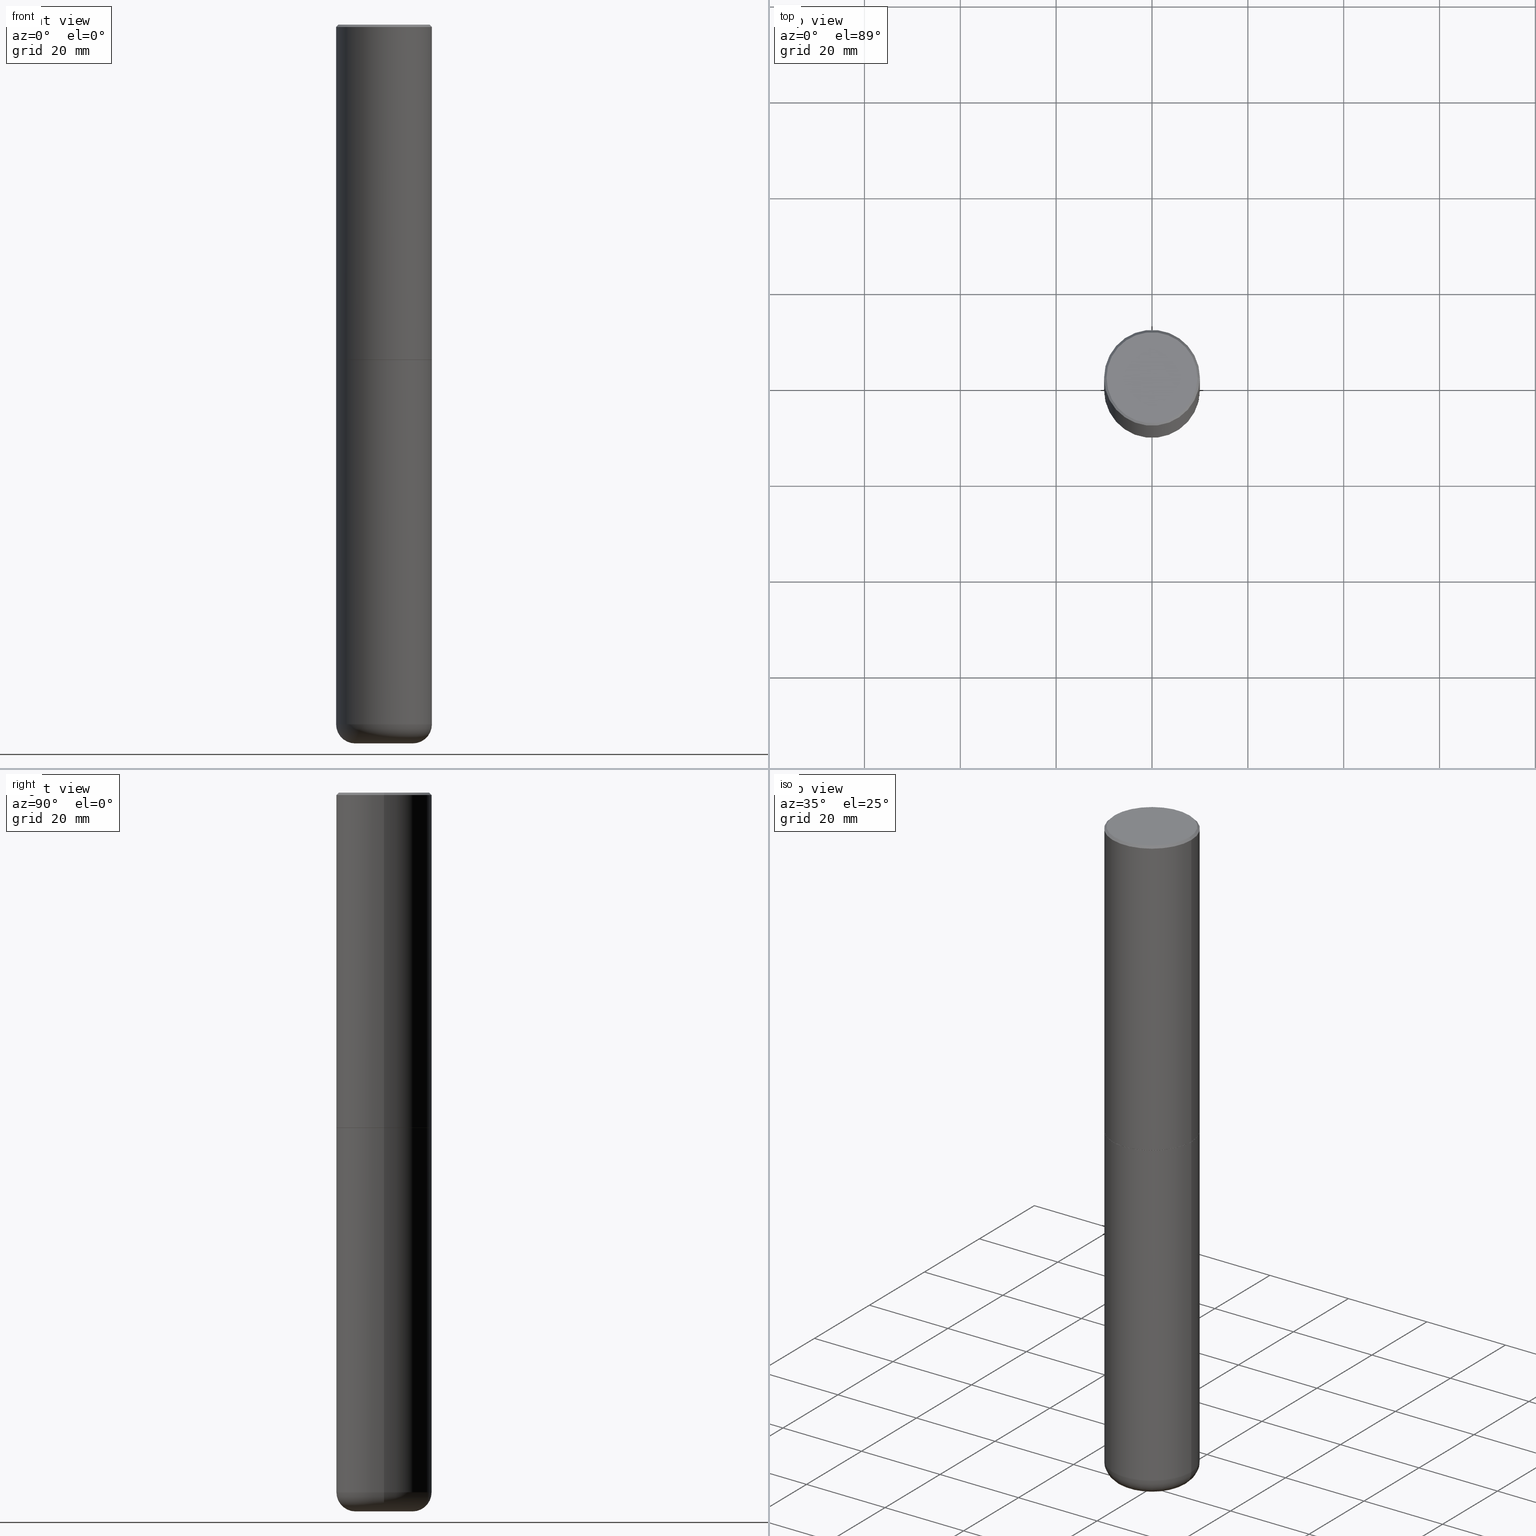
[diagram: canonical four-view strip — front | top / right | iso, engineering-drawing reading convention]
A machine part, canonical four-view strip (front | top / right | iso — engineering-drawing reading convention). The complete STEP part file that produces these views, byte-faithful:
ISO-10303-21;
HEADER;
FILE_DESCRIPTION (( 'STEP AP203' ),
    '1' );
FILE_NAME ('44886.STEP',
    '2024-03-04T13:32:39',
    ( '' ),
    ( '' ),
    'SwSTEP 2.0',
    'SolidWorks 2023',
    '' );
FILE_SCHEMA (( 'CONFIG_CONTROL_DESIGN' ));
ENDSEC;

DATA;
#1 = CARTESIAN_POINT ( 'NONE',  ( -0.3937000000000000499, 2.679362779428219918E-15, -0.02000000000000008715 ) ) ;
#2 = EDGE_CURVE ( 'NONE', #195, #148, #213, .T. ) ;
#3 = CARTESIAN_POINT ( 'NONE',  ( 0.3926999999999999935, -1.236438286524521528E-14, -2.755899999999998240 ) ) ;
#4 = DIRECTION ( 'NONE',  ( 1.000000000000000000, -6.982962677686265922E-15, 0.000000000000000000 ) ) ;
#5 = CONICAL_SURFACE ( 'NONE', #250, 0.3926999999999999935, 0.7853981633977554777 ) ;
#6 = ORIENTED_EDGE ( 'NONE', *, *, #312, .T. ) ;
#7 = APPLICATION_CONTEXT ( 'configuration controlled 3d designs of mechanical parts and assemblies' ) ;
#8 = PLANE ( 'NONE',  #111 ) ;
#9 = CARTESIAN_POINT ( 'NONE',  ( -1.670162262936351711E-45, 2.384549072608715520E-31, 6.829619984160658046E-17 ) ) ;
#10 = PERSON_AND_ORGANIZATION ( #248, #112 ) ;
#11 = DIRECTION ( 'NONE',  ( -2.445468806185136597E-29, 3.491481338843145583E-15, 1.000000000000000000 ) ) ;
#12 = AXIS2_PLACEMENT_3D ( 'NONE', #79, #96, #192 ) ;
#13 = DATE_AND_TIME ( #106, #77 ) ;
#14 = EDGE_CURVE ( 'NONE', #163, #66, #18, .T. ) ;
#15 = DIRECTION ( 'NONE',  ( 1.000000000000000000, -6.982962677686267499E-15, 0.000000000000000000 ) ) ;
#16 = FACE_OUTER_BOUND ( 'NONE', #121, .T. ) ;
#17 = CARTESIAN_POINT ( 'NONE',  ( -0.3937000000000000499, 2.679362779428219918E-15, -0.02000000000000008715 ) ) ;
#18 = CIRCLE ( 'NONE', #45, 0.3937000000000000499 ) ;
#19 = MANIFOLD_SOLID_BREP ( 'Body-Move/Copy2[2]', #231 ) ;
#20 = AXIS2_PLACEMENT_3D ( 'NONE', #184, #154, #222 ) ;
#21 = EDGE_LOOP ( 'NONE', ( #146, #247 ) ) ;
#22 = ORIENTED_EDGE ( 'NONE', *, *, #340, .T. ) ;
#23 = ORIENTED_EDGE ( 'NONE', *, *, #296, .F. ) ;
#24 = MANIFOLD_SOLID_BREP ( 'Body-Move/Copy2[1]', #80 ) ;
#25 = CARTESIAN_POINT ( 'NONE',  ( 4.890937612370294178E-31, -6.982962677686321191E-17, -0.02000000000000008715 ) ) ;
#26 = DIRECTION ( 'NONE',  ( -2.445468806185136877E-29, 3.491481338843145188E-15, 1.000000000000000000 ) ) ;
#27 = ORIENTED_EDGE ( 'NONE', *, *, #410, .F. ) ;
#28 = APPLICATION_PROTOCOL_DEFINITION ( 'international standard', 'config_control_design', 1994, #7 ) ;
#29 = CARTESIAN_POINT ( 'NONE',  ( -0.2362000000000000210, -1.839073279380504538E-14, -5.748000000000000220 ) ) ;
#30 = APPROVAL_PERSON_ORGANIZATION ( #69, #90, #108 ) ;
#31 = PERSON_AND_ORGANIZATION ( #248, #112 ) ;
#32 = ORIENTED_EDGE ( 'NONE', *, *, #216, .F. ) ;
#33 = EDGE_CURVE ( 'NONE', #262, #97, #49, .T. ) ;
#34 = CARTESIAN_POINT ( 'NONE',  ( 6.737022014159429266E-29, -9.618681940378976650E-15, -2.754899999999998350 ) ) ;
#35 = CARTESIAN_POINT ( 'NONE',  ( -0.3926999999999999935, -6.831872098387905090E-15, -2.755899999999998240 ) ) ;
#36 = EDGE_LOOP ( 'NONE', ( #263, #405, #396, #381 ) ) ;
#37 = CALENDAR_DATE ( 2024, 4, 3 ) ;
#38 = APPROVAL ( #397, 'UNSPECIFIED' ) ;
#39 = AXIS2_PLACEMENT_3D ( 'NONE', #341, #373, #310 ) ;
#40 = ORIENTED_EDGE ( 'NONE', *, *, #312, .F. ) ;
#41 = DIRECTION ( 'NONE',  ( 1.000000000000000000, -6.982962677686266711E-15, 4.877734241229875126E-29 ) ) ;
#42 = ADVANCED_FACE ( 'NONE', ( #289 ), #193, .T. ) ;
#43 = DATE_AND_TIME ( #240, #403 ) ;
#44 = DIRECTION ( 'NONE',  ( -2.445468806185136877E-29, 3.491481338843145188E-15, 1.000000000000000000 ) ) ;
#45 = AXIS2_PLACEMENT_3D ( 'NONE', #297, #132, #201 ) ;
#46 = CONICAL_SURFACE ( 'NONE', #153, 0.3937000000000000499, 0.7853981633974442822 ) ;
#47 = CARTESIAN_POINT ( 'NONE',  ( 4.890937612370294178E-31, -6.982962677686321191E-17, -0.02000000000000008715 ) ) ;
#48 = DIRECTION ( 'NONE',  ( 0.7071067811865446862, -7.319954787623245001E-15, -0.7071067811865503483 ) ) ;
#49 = CIRCLE ( 'NONE', #151, 0.3926999999999999935 ) ;
#50 = ORIENTED_EDGE ( 'NONE', *, *, #118, .T. ) ;
#51 = VECTOR ( 'NONE', #44, 39.37007874015748143 ) ;
#52 = ORIENTED_EDGE ( 'NONE', *, *, #354, .F. ) ;
#53 = CC_DESIGN_DATE_AND_TIME_ASSIGNMENT ( #43, #172, ( #215 ) ) ;
#54 = ORIENTED_EDGE ( 'NONE', *, *, #127, .T. ) ;
#55 = EDGE_CURVE ( 'NONE', #97, #195, #88, .T. ) ;
#56 = ORIENTED_EDGE ( 'NONE', *, *, #183, .T. ) ;
#57 = CIRCLE ( 'NONE', #257, 0.3937000000000000499 ) ;
#58 = EDGE_CURVE ( 'NONE', #347, #120, #186, .T. ) ;
#59 = CARTESIAN_POINT ( 'NONE',  ( 0.3937000000000000499, -1.237136582792290287E-14, -2.755899999999998240 ) ) ;
#60 = FACE_OUTER_BOUND ( 'NONE', #157, .T. ) ;
#61 = DIRECTION ( 'NONE',  ( -1.000000000000000000, 7.105427357601006592E-15, 0.000000000000000000 ) ) ;
#62 = EDGE_CURVE ( 'NONE', #347, #342, #413, .T. ) ;
#63 = ADVANCED_FACE ( 'NONE', ( #298 ), #8, .F. ) ;
#64 = DIRECTION ( 'NONE',  ( -2.445468806185136597E-29, 3.491481338843145583E-15, 1.000000000000000000 ) ) ;
#65 = APPROVAL_DATE_TIME ( #198, #142 ) ;
#66 = VERTEX_POINT ( 'NONE', #59 ) ;
#67 = DIRECTION ( 'NONE',  ( -1.000000000000000000, 6.982962677686265922E-15, 0.000000000000000000 ) ) ;
#68 = DIRECTION ( 'NONE',  ( 1.000000000000000000, -6.982962677686266711E-15, 4.876176775795935793E-29 ) ) ;
#69 = PERSON_AND_ORGANIZATION ( #248, #112 ) ;
#70 = DIRECTION ( 'NONE',  ( 1.000000000000000000, -6.982962677686266711E-15, 4.877734241229875126E-29 ) ) ;
#71 = EDGE_CURVE ( 'NONE', #262, #148, #199, .T. ) ;
#72 = PERSON_AND_ORGANIZATION ( #248, #112 ) ;
#73 = PERSON_AND_ORGANIZATION ( #248, #112 ) ;
#74 = DIRECTION ( 'NONE',  ( 1.000000000000000000, -6.982962677686265133E-15, 0.000000000000000000 ) ) ;
#75 = DATE_AND_TIME ( #299, #180 ) ;
#76 = CARTESIAN_POINT ( 'NONE',  ( 0.3937000000000000499, -2.749192406205083217E-15, 1.919750796630860172E-29 ) ) ;
#77 = LOCAL_TIME ( 8, 32, 39.00000000000000000, #171 ) ;
#78 = LINE ( 'NONE', #212, #232 ) ;
#79 = CARTESIAN_POINT ( 'NONE',  ( 6.739467482965614869E-29, -9.622173421717819657E-15, -2.755899999999998240 ) ) ;
#80 = CLOSED_SHELL ( 'NONE', ( #211, #113, #63, #395, #276, #261 ) ) ;
#81 = ORIENTED_EDGE ( 'NONE', *, *, #176, .T. ) ;
#82 = AXIS2_PLACEMENT_3D ( 'NONE', #100, #398, #70 ) ;
#83 = ORIENTED_EDGE ( 'NONE', *, *, #71, .F. ) ;
#84 = LINE ( 'NONE', #182, #173 ) ;
#85 = TOROIDAL_SURFACE ( 'NONE', #351, 0.2362000000000000210, 0.1575000000000003619 ) ;
#86 =( LENGTH_UNIT ( ) NAMED_UNIT ( * ) SI_UNIT ( $, .METRE. ) );
#87 = VERTEX_POINT ( 'NONE', #294 ) ;
#88 = LINE ( 'NONE', #265, #101 ) ;
#89 = CARTESIAN_POINT ( 'NONE',  ( 4.890937612370294178E-31, -6.982962677686321191E-17, -0.02000000000000008715 ) ) ;
#90 = APPROVAL ( #301, 'UNSPECIFIED' ) ;
#91 = ORIENTED_EDGE ( 'NONE', *, *, #166, .T. ) ;
#92 = AXIS2_PLACEMENT_3D ( 'NONE', #267, #107, #400 ) ;
#93 = CIRCLE ( 'NONE', #385, 0.3937000000000000499 ) ;
#94 = LENGTH_MEASURE_WITH_UNIT ( LENGTH_MEASURE( 0.02539999999999999897 ), #86 );
#95 = ORIENTED_EDGE ( 'NONE', *, *, #190, .F. ) ;
#96 = DIRECTION ( 'NONE',  ( -2.445468806185136597E-29, 3.491481338843145583E-15, 1.000000000000000000 ) ) ;
#97 = VERTEX_POINT ( 'NONE', #3 ) ;
#98 = CC_DESIGN_PERSON_AND_ORGANIZATION_ASSIGNMENT ( #99, #139, ( #130 ) ) ;
#99 = PERSON_AND_ORGANIZATION ( #248, #112 ) ;
#100 = CARTESIAN_POINT ( 'NONE',  ( -1.670162262936351711E-45, 2.384549072608715520E-31, 6.829619984160658046E-17 ) ) ;
#101 = VECTOR ( 'NONE', #292, 39.37007874015748143 ) ;
#102 = PRODUCT_DEFINITION_SHAPE ( 'NONE', 'NONE',  #221 ) ;
#103 = CIRCLE ( 'NONE', #224, 0.3937000000000004385 ) ;
#104 = CONICAL_SURFACE ( 'NONE', #243, 0.3937000000000000499, 0.7853981633974442822 ) ;
#105 = CARTESIAN_POINT ( 'NONE',  ( 1.405655469795216423E-28, -2.006903473567040335E-14, -5.748000000000000220 ) ) ;
#106 = CALENDAR_DATE ( 2024, 4, 3 ) ;
#107 = DIRECTION ( 'NONE',  ( -2.445468806185136597E-29, 3.491481338843145583E-15, 1.000000000000000000 ) ) ;
#108 = APPROVAL_ROLE ( '' ) ;
#109 = DIRECTION ( 'NONE',  ( 1.000000000000000000, -6.982962677686266711E-15, 4.876176775795935793E-29 ) ) ;
#110 = FACE_OUTER_BOUND ( 'NONE', #407, .T. ) ;
#111 = AXIS2_PLACEMENT_3D ( 'NONE', #159, #256, #229 ) ;
#112 = ORGANIZATION ( 'UNSPECIFIED', 'UNSPECIFIED', '' ) ;
#113 = ADVANCED_FACE ( 'NONE', ( #128 ), #85, .T. ) ;
#114 = AXIS2_PLACEMENT_3D ( 'NONE', #259, #394, #358 ) ;
#115 = VECTOR ( 'NONE', #357, 39.37007874015748143 ) ;
#116 = DIRECTION ( 'NONE',  ( -1.000000000000000000, 6.982962677686265922E-15, 0.000000000000000000 ) ) ;
#117 = ORIENTED_EDGE ( 'NONE', *, *, #62, .F. ) ;
#118 = EDGE_CURVE ( 'NONE', #120, #347, #196, .T. ) ;
#119 = DIRECTION ( 'NONE',  ( 1.000000000000000000, -6.982962677686265922E-15, 0.000000000000000000 ) ) ;
#120 = VERTEX_POINT ( 'NONE', #327 ) ;
#121 = EDGE_LOOP ( 'NONE', ( #152, #286, #386, #416 ) ) ;
#122 = CIRCLE ( 'NONE', #82, 0.3737000000000000322 ) ;
#123 = ORIENTED_EDGE ( 'NONE', *, *, #33, .F. ) ;
#124 = PERSON_AND_ORGANIZATION_ROLE ( 'design_owner' ) ;
#125 = ORIENTED_EDGE ( 'NONE', *, *, #216, .T. ) ;
#126 = DIRECTION ( 'NONE',  ( -2.445468806185136597E-29, 3.491481338843145583E-15, 1.000000000000000000 ) ) ;
#127 = EDGE_CURVE ( 'NONE', #87, #277, #392, .T. ) ;
#128 = FACE_OUTER_BOUND ( 'NONE', #314, .T. ) ;
#129 = PRODUCT ( '44886', '44886', '', ( #158 ) ) ;
#130 = PRODUCT_DEFINITION_FORMATION_WITH_SPECIFIED_SOURCE ( 'ANY', '', #129, .NOT_KNOWN. ) ;
#131 = PERSON_AND_ORGANIZATION ( #248, #112 ) ;
#132 = DIRECTION ( 'NONE',  ( -2.445468806185136597E-29, 3.491481338843145583E-15, 1.000000000000000000 ) ) ;
#133 = PLANE ( 'NONE',  #383 ) ;
#134 = CARTESIAN_POINT ( 'NONE',  ( 0.000000000000000000, 0.000000000000000000, 0.000000000000000000 ) ) ;
#135 = EDGE_CURVE ( 'NONE', #66, #163, #223, .T. ) ;
#136 = CC_DESIGN_APPROVAL ( #90, ( #215 ) ) ;
#137 = ADVANCED_FACE ( 'NONE', ( #110 ), #138, .T. ) ;
#138 = CYLINDRICAL_SURFACE ( 'NONE', #203, 0.3937000000000002164 ) ;
#139 = PERSON_AND_ORGANIZATION_ROLE ( 'design_supplier' ) ;
#140 = CARTESIAN_POINT ( 'NONE',  ( 1.405655469795216423E-28, -2.006903473567040335E-14, -5.748000000000000220 ) ) ;
#141 = DIRECTION ( 'NONE',  ( 1.000000000000000000, -6.982962677686265922E-15, 0.000000000000000000 ) ) ;
#142 = APPROVAL ( #260, 'UNSPECIFIED' ) ;
#143 = CARTESIAN_POINT ( 'NONE',  ( 6.739467482965614869E-29, -9.622173421717819657E-15, -2.755899999999998240 ) ) ;
#144 = VECTOR ( 'NONE', #26, 39.37007874015748143 ) ;
#145 = CC_DESIGN_PERSON_AND_ORGANIZATION_ASSIGNMENT ( #10, #329, ( #215 ) ) ;
#146 = ORIENTED_EDGE ( 'NONE', *, *, #135, .T. ) ;
#147 = DIRECTION ( 'NONE',  ( -2.445468806185136597E-29, 3.491481338843145583E-15, 1.000000000000000000 ) ) ;
#148 = VERTEX_POINT ( 'NONE', #368 ) ;
#149 = ADVANCED_FACE ( 'NONE', ( #242 ), #133, .F. ) ;
#150 = ADVANCED_FACE ( 'NONE', ( #16 ), #5, .T. ) ;
#151 = AXIS2_PLACEMENT_3D ( 'NONE', #353, #64, #235 ) ;
#152 = ORIENTED_EDGE ( 'NONE', *, *, #363, .T. ) ;
#153 = AXIS2_PLACEMENT_3D ( 'NONE', #89, #258, #67 ) ;
#154 = DIRECTION ( 'NONE',  ( 2.438088387897960049E-29, -3.491481338843145188E-15, -1.000000000000000000 ) ) ;
#155 = ORIENTED_EDGE ( 'NONE', *, *, #55, .T. ) ;
#156 =( NAMED_UNIT ( * ) PLANE_ANGLE_UNIT ( ) SI_UNIT ( $, .RADIAN. ) );
#157 = EDGE_LOOP ( 'NONE', ( #23, #81, #56, #374 ) ) ;
#158 = MECHANICAL_CONTEXT ( 'NONE', #7, 'mechanical' ) ;
#159 = CARTESIAN_POINT ( 'NONE',  ( 6.739467482965614869E-29, -9.622173421717819657E-15, -2.755899999999998240 ) ) ;
#160 = AXIS2_PLACEMENT_3D ( 'NONE', #202, #227, #226 ) ;
#161 = APPROVAL_PERSON_ORGANIZATION ( #73, #38, #365 ) ;
#162 =( CONVERSION_BASED_UNIT ( 'INCH', #94 ) LENGTH_UNIT ( ) NAMED_UNIT ( #371 ) );
#163 = VERTEX_POINT ( 'NONE', #239 ) ;
#164 = DIRECTION ( 'NONE',  ( -2.445468806185136597E-29, 3.491481338843145583E-15, 1.000000000000000000 ) ) ;
#165 = ORIENTED_EDGE ( 'NONE', *, *, #58, .F. ) ;
#166 = EDGE_CURVE ( 'NONE', #277, #87, #122, .T. ) ;
#167 = LOCAL_TIME ( 8, 32, 39.00000000000000000, #389 ) ;
#168 = COORDINATED_UNIVERSAL_TIME_OFFSET ( 5, 0, .BEHIND. ) ;
#169 = ORIENTED_EDGE ( 'NONE', *, *, #218, .T. ) ;
#170 = CARTESIAN_POINT ( 'NONE',  ( 0.3937000000000000499, -2.770807688499515734E-15, -0.02000000000000008715 ) ) ;
#171 = COORDINATED_UNIVERSAL_TIME_OFFSET ( 5, 0, .BEHIND. ) ;
#172 = DATE_TIME_ROLE ( 'classification_date' ) ;
#173 = VECTOR ( 'NONE', #254, 39.37007874015748143 ) ;
#174 = CARTESIAN_POINT ( 'NONE',  ( 0.3937000000000004385, -1.236787434658406144E-14, -2.754899999999998350 ) ) ;
#175 = APPLICATION_CONTEXT ( 'configuration controlled 3d designs of mechanical parts and assemblies' ) ;
#176 = EDGE_CURVE ( 'NONE', #342, #217, #57, .T. ) ;
#177 = DIRECTION ( 'NONE',  ( -2.445468806185136597E-29, 3.491481338843145583E-15, 1.000000000000000000 ) ) ;
#178 = DIRECTION ( 'NONE',  ( -2.445468806185136597E-29, 3.491481338843145583E-15, 1.000000000000000000 ) ) ;
#179 = CARTESIAN_POINT ( 'NONE',  ( -0.3737000000000000322, 2.644447966039789058E-15, 6.829619984158820247E-17 ) ) ;
#180 = LOCAL_TIME ( 8, 32, 39.00000000000000000, #271 ) ;
#181 = VERTEX_POINT ( 'NONE', #170 ) ;
#182 = CARTESIAN_POINT ( 'NONE',  ( 0.3937000000000002164, -2.749192406205084794E-15, 1.919750796630861012E-29 ) ) ;
#183 = EDGE_CURVE ( 'NONE', #217, #66, #333, .T. ) ;
#184 = CARTESIAN_POINT ( 'NONE',  ( -4.636291820505651081E-29, -4.793973614828979429E-14, -5.905500000000000860 ) ) ;
#185 = PLANE ( 'NONE',  #20 ) ;
#186 = CIRCLE ( 'NONE', #160, 0.2362000000000000766 ) ;
#187 = ORIENTED_EDGE ( 'NONE', *, *, #58, .T. ) ;
#188 = AXIS2_PLACEMENT_3D ( 'NONE', #134, #272, #268 ) ;
#189 = CARTESIAN_POINT ( 'NONE',  ( -0.3937000000000000499, 2.797406750687514786E-15, -1.936584745033356735E-29 ) ) ;
#190 = EDGE_CURVE ( 'NONE', #181, #323, #93, .T. ) ;
#191 = EDGE_LOOP ( 'NONE', ( #83, #390, #155, #377 ) ) ;
#192 = DIRECTION ( 'NONE',  ( 1.000000000000000000, -6.982962677686265133E-15, 0.000000000000000000 ) ) ;
#193 = CYLINDRICAL_SURFACE ( 'NONE', #279, 0.3937000000000002164 ) ;
#194 = CARTESIAN_POINT ( 'NONE',  ( -0.2362000000000000766, -1.810613454482786325E-14, -5.905500000000000860 ) ) ;
#195 = VERTEX_POINT ( 'NONE', #174 ) ;
#196 = CIRCLE ( 'NONE', #92, 0.2362000000000000766 ) ;
#197 = CC_DESIGN_SECURITY_CLASSIFICATION ( #215, ( #130 ) ) ;
#198 = DATE_AND_TIME ( #350, #167 ) ;
#199 = LINE ( 'NONE', #35, #375 ) ;
#200 = PERSON_AND_ORGANIZATION ( #248, #112 ) ;
#201 = DIRECTION ( 'NONE',  ( 1.000000000000000000, -6.982962677686267499E-15, 0.000000000000000000 ) ) ;
#202 = CARTESIAN_POINT ( 'NONE',  ( 1.444171603492632494E-28, -2.061894304653819828E-14, -5.905500000000000860 ) ) ;
#203 = AXIS2_PLACEMENT_3D ( 'NONE', #207, #237, #109 ) ;
#204 = SECURITY_CLASSIFICATION_LEVEL ( 'unclassified' ) ;
#205 = DIRECTION ( 'NONE',  ( -1.000000000000000000, 6.982962677686265922E-15, -4.876176775795935793E-29 ) ) ;
#206 = PERSON_AND_ORGANIZATION_ROLE ( 'creator' ) ;
#207 = CARTESIAN_POINT ( 'NONE',  ( 0.000000000000000000, 0.000000000000000000, 0.000000000000000000 ) ) ;
#208 = DATE_AND_TIME ( #37, #238 ) ;
#209 = AXIS2_PLACEMENT_3D ( 'NONE', #25, #408, #119 ) ;
#210 = DIRECTION ( 'NONE',  ( -2.445468806185136597E-29, 3.491481338843145583E-15, 1.000000000000000000 ) ) ;
#211 = ADVANCED_FACE ( 'NONE', ( #302 ), #273, .T. ) ;
#212 = CARTESIAN_POINT ( 'NONE',  ( 0.3937000000000000499, -2.770807688499515734E-15, -0.02000000000000008715 ) ) ;
#213 = CIRCLE ( 'NONE', #114, 0.3937000000000004385 ) ;
#214 = FACE_OUTER_BOUND ( 'NONE', #251, .T. ) ;
#215 = SECURITY_CLASSIFICATION ( '', '', #204 ) ;
#216 = EDGE_CURVE ( 'NONE', #217, #342, #370, .T. ) ;
#217 = VERTEX_POINT ( 'NONE', #244 ) ;
#218 = EDGE_CURVE ( 'NONE', #87, #181, #78, .T. ) ;
#219 = DIRECTION ( 'NONE',  ( -2.438088387897960049E-29, 3.491481338843145188E-15, 1.000000000000000000 ) ) ;
#220 = ORIENTED_EDGE ( 'NONE', *, *, #230, .T. ) ;
#221 = PRODUCT_DEFINITION ( 'UNKNOWN', '', #130, #308 ) ;
#222 = DIRECTION ( 'NONE',  ( -1.000000000000000000, 6.982962677686265922E-15, -4.876176775795935793E-29 ) ) ;
#223 = CIRCLE ( 'NONE', #324, 0.3937000000000000499 ) ;
#224 = AXIS2_PLACEMENT_3D ( 'NONE', #34, #164, #4 ) ;
#225 = CYLINDRICAL_SURFACE ( 'NONE', #415, 0.3937000000000000499 ) ;
#226 = DIRECTION ( 'NONE',  ( 1.000000000000000000, -6.982962677686270655E-15, 0.000000000000000000 ) ) ;
#227 = DIRECTION ( 'NONE',  ( -2.445468806185136597E-29, 3.491481338843145583E-15, 1.000000000000000000 ) ) ;
#228 = CARTESIAN_POINT ( 'NONE',  ( -0.3937000000000002164, -1.727162798498288620E-14, -5.748000000000000220 ) ) ;
#229 = DIRECTION ( 'NONE',  ( -1.000000000000000000, 6.982962677686265922E-15, -4.876176775795935793E-29 ) ) ;
#230 = EDGE_CURVE ( 'NONE', #195, #181, #84, .T. ) ;
#231 = CLOSED_SHELL ( 'NONE', ( #150, #137, #281, #346, #42, #328, #290, #149 ) ) ;
#232 = VECTOR ( 'NONE', #48, 39.37007874015748143 ) ;
#233 = ORIENTED_EDGE ( 'NONE', *, *, #176, .F. ) ;
#234 = DIRECTION ( 'NONE',  ( 1.000000000000000000, -6.982962677686265133E-15, 0.000000000000000000 ) ) ;
#235 = DIRECTION ( 'NONE',  ( 1.000000000000000000, -6.982962677686265133E-15, 0.000000000000000000 ) ) ;
#236 = ADVANCED_BREP_SHAPE_REPRESENTATION ( '44886', ( #24, #19, #264 ), #282 ) ;
#237 = DIRECTION ( 'NONE',  ( -2.445468806185136597E-29, 3.491481338843145583E-15, 1.000000000000000000 ) ) ;
#238 = LOCAL_TIME ( 8, 32, 39.00000000000000000, #367 ) ;
#239 = CARTESIAN_POINT ( 'NONE',  ( -0.3937000000000000499, -1.204819732800659672E-14, -2.755899999999998240 ) ) ;
#240 = CALENDAR_DATE ( 2024, 4, 3 ) ;
#241 = CARTESIAN_POINT ( 'NONE',  ( 6.739467482965614869E-29, -9.622173421717819657E-15, -2.755899999999998240 ) ) ;
#242 = FACE_OUTER_BOUND ( 'NONE', #309, .T. ) ;
#243 = AXIS2_PLACEMENT_3D ( 'NONE', #305, #376, #116 ) ;
#244 = CARTESIAN_POINT ( 'NONE',  ( 0.3937000000000002164, -2.281822714187548973E-14, -5.748000000000000220 ) ) ;
#245 = LINE ( 'NONE', #189, #406 ) ;
#246 = FACE_OUTER_BOUND ( 'NONE', #339, .T. ) ;
#247 = ORIENTED_EDGE ( 'NONE', *, *, #14, .T. ) ;
#248 = PERSON ( 'UNSPECIFIED', 'UNSPECIFIED', 'UNSPECIFIED', ('UNSPECIFIED'), ('UNSPECIFIED'), ('UNSPECIFIED') ) ;
#249 = CARTESIAN_POINT ( 'NONE',  ( -0.3926999999999999935, -6.826573644039681899E-15, -2.755899999999998240 ) ) ;
#250 = AXIS2_PLACEMENT_3D ( 'NONE', #241, #402, #74 ) ;
#251 = EDGE_LOOP ( 'NONE', ( #255, #169, #379, #52 ) ) ;
#252 = PLANE ( 'NONE',  #393 ) ;
#253 = ORIENTED_EDGE ( 'NONE', *, *, #183, .F. ) ;
#254 = DIRECTION ( 'NONE',  ( -2.445468806185136877E-29, 3.491481338843145188E-15, 1.000000000000000000 ) ) ;
#255 = ORIENTED_EDGE ( 'NONE', *, *, #127, .F. ) ;
#256 = DIRECTION ( 'NONE',  ( 2.438088387897960049E-29, -3.491481338843145188E-15, -1.000000000000000000 ) ) ;
#257 = AXIS2_PLACEMENT_3D ( 'NONE', #140, #210, #360 ) ;
#258 = DIRECTION ( 'NONE',  ( 2.445468806185136597E-29, -3.491481338843145583E-15, -1.000000000000000000 ) ) ;
#259 = CARTESIAN_POINT ( 'NONE',  ( 6.737022014159429266E-29, -9.618681940378976650E-15, -2.754899999999998350 ) ) ;
#260 = APPROVAL_STATUS ( 'not_yet_approved' ) ;
#261 = ADVANCED_FACE ( 'NONE', ( #280 ), #185, .T. ) ;
#262 = VERTEX_POINT ( 'NONE', #249 ) ;
#263 = ORIENTED_EDGE ( 'NONE', *, *, #218, .F. ) ;
#264 = AXIS2_PLACEMENT_3D ( 'NONE', #291, #414, #411 ) ;
#265 = CARTESIAN_POINT ( 'NONE',  ( 0.3926999999999999935, -1.236438286524521528E-14, -2.755899999999998240 ) ) ;
#266 = CC_DESIGN_DATE_AND_TIME_ASSIGNMENT ( #13, #362, ( #221 ) ) ;
#267 = CARTESIAN_POINT ( 'NONE',  ( 1.444171603492632494E-28, -2.061894304653819828E-14, -5.905500000000000860 ) ) ;
#268 = DIRECTION ( 'NONE',  ( 1.000000000000000000, -6.982962677686265922E-15, 4.876176775795935793E-29 ) ) ;
#269 = AXIS2_PLACEMENT_3D ( 'NONE', #29, #320, #61 ) ;
#270 = DIRECTION ( 'NONE',  ( 2.438088387897960049E-29, -3.491481338843145188E-15, -1.000000000000000000 ) ) ;
#271 = COORDINATED_UNIVERSAL_TIME_OFFSET ( 5, 0, .BEHIND. ) ;
#272 = DIRECTION ( 'NONE',  ( -2.445468806185136597E-29, 3.491481338843145583E-15, 1.000000000000000000 ) ) ;
#273 = CYLINDRICAL_SURFACE ( 'NONE', #188, 0.3937000000000000499 ) ;
#274 = UNCERTAINTY_MEASURE_WITH_UNIT (LENGTH_MEASURE( 1.000000000000000082E-05 ), #162, 'distance_accuracy_value', 'NONE');
#275 = CIRCLE ( 'NONE', #336, 0.3926999999999999935 ) ;
#276 = ADVANCED_FACE ( 'NONE', ( #246 ), #317, .T. ) ;
#277 = VERTEX_POINT ( 'NONE', #179 ) ;
#278 = ORIENTED_EDGE ( 'NONE', *, *, #363, .F. ) ;
#279 = AXIS2_PLACEMENT_3D ( 'NONE', #388, #322, #68 ) ;
#280 = FACE_OUTER_BOUND ( 'NONE', #335, .T. ) ;
#281 = ADVANCED_FACE ( 'NONE', ( #214 ), #104, .T. ) ;
#282 =( GEOMETRIC_REPRESENTATION_CONTEXT ( 3 ) GLOBAL_UNCERTAINTY_ASSIGNED_CONTEXT ( ( #274 ) ) GLOBAL_UNIT_ASSIGNED_CONTEXT ( ( #162, #156, #287 ) ) REPRESENTATION_CONTEXT ( 'NONE', 'WORKASPACE' ) );
#283 = DIRECTION ( 'NONE',  ( 1.000000000000000000, -6.982962677686272233E-15, 4.883557194083114022E-29 ) ) ;
#284 = PRODUCT_RELATED_PRODUCT_CATEGORY ( 'detail', '', ( #129 ) ) ;
#285 = ORIENTED_EDGE ( 'NONE', *, *, #135, .F. ) ;
#286 = ORIENTED_EDGE ( 'NONE', *, *, #71, .T. ) ;
#287 =( NAMED_UNIT ( * ) SI_UNIT ( $, .STERADIAN. ) SOLID_ANGLE_UNIT ( ) );
#288 = CIRCLE ( 'NONE', #209, 0.3937000000000000499 ) ;
#289 = FACE_OUTER_BOUND ( 'NONE', #349, .T. ) ;
#290 = ADVANCED_FACE ( 'NONE', ( #404 ), #252, .F. ) ;
#291 = CARTESIAN_POINT ( 'NONE',  ( 0.000000000000000000, 0.000000000000000000, 0.000000000000000000 ) ) ;
#292 = DIRECTION ( 'NONE',  ( 0.7071067811867647324, -2.468850131084532135E-15, 0.7071067811863303021 ) ) ;
#293 = FACE_OUTER_BOUND ( 'NONE', #36, .T. ) ;
#294 = CARTESIAN_POINT ( 'NONE',  ( 0.3737000000000000322, -2.667287895133368753E-15, 6.829619984162503241E-17 ) ) ;
#295 = DIRECTION ( 'NONE',  ( 1.000000000000000000, -6.982962677686265922E-15, 4.876176775795935793E-29 ) ) ;
#296 = EDGE_CURVE ( 'NONE', #342, #163, #245, .T. ) ;
#297 = CARTESIAN_POINT ( 'NONE',  ( 6.739467482965614869E-29, -9.622173421717819657E-15, -2.755899999999998240 ) ) ;
#298 = FACE_OUTER_BOUND ( 'NONE', #21, .T. ) ;
#299 = CALENDAR_DATE ( 2024, 4, 3 ) ;
#300 = DIRECTION ( 'NONE',  ( 1.000000000000000000, -6.982962677686272233E-15, 4.883557194083114022E-29 ) ) ;
#301 = APPROVAL_STATUS ( 'not_yet_approved' ) ;
#302 = FACE_OUTER_BOUND ( 'NONE', #307, .T. ) ;
#303 = CARTESIAN_POINT ( 'NONE',  ( 2.609533152651357803E-15, 0.3737000000000000322, -1.270618476404880419E-15 ) ) ;
#304 = APPROVAL_PERSON_ORGANIZATION ( #131, #142, #355 ) ;
#305 = CARTESIAN_POINT ( 'NONE',  ( 4.890937612370294178E-31, -6.982962677686321191E-17, -0.02000000000000008715 ) ) ;
#306 = ORIENTED_EDGE ( 'NONE', *, *, #118, .F. ) ;
#307 = EDGE_LOOP ( 'NONE', ( #125, #338, #285, #253 ) ) ;
#308 = DESIGN_CONTEXT ( 'detailed design', #175, 'design' ) ;
#309 = EDGE_LOOP ( 'NONE', ( #91, #54 ) ) ;
#310 = DIRECTION ( 'NONE',  ( 1.000000000000000000, -6.982962677686271444E-15, 0.000000000000000000 ) ) ;
#311 = CIRCLE ( 'NONE', #39, 0.1575000000000003342 ) ;
#312 = EDGE_CURVE ( 'NONE', #120, #217, #311, .T. ) ;
#313 = EDGE_LOOP ( 'NONE', ( #278, #123 ) ) ;
#314 = EDGE_LOOP ( 'NONE', ( #50, #418, #32, #40 ) ) ;
#315 = ORIENTED_EDGE ( 'NONE', *, *, #230, .F. ) ;
#316 = EDGE_CURVE ( 'NONE', #323, #181, #288, .T. ) ;
#317 = TOROIDAL_SURFACE ( 'NONE', #325, 0.2362000000000000210, 0.1575000000000003619 ) ;
#318 = DIRECTION ( 'NONE',  ( -0.7071067811867647324, 7.493145998871139866E-15, 0.7071067811863303021 ) ) ;
#319 = LINE ( 'NONE', #1, #115 ) ;
#320 = DIRECTION ( 'NONE',  ( 7.105427357601001859E-15, 1.000000000000000000, -3.491481338843145583E-15 ) ) ;
#321 = PERSON_AND_ORGANIZATION_ROLE ( 'creator' ) ;
#322 = DIRECTION ( 'NONE',  ( -2.445468806185136597E-29, 3.491481338843145583E-15, 1.000000000000000000 ) ) ;
#323 = VERTEX_POINT ( 'NONE', #17 ) ;
#324 = AXIS2_PLACEMENT_3D ( 'NONE', #401, #178, #399 ) ;
#325 = AXIS2_PLACEMENT_3D ( 'NONE', #380, #147, #283 ) ;
#326 = SHAPE_DEFINITION_REPRESENTATION ( #102, #236 ) ;
#327 = CARTESIAN_POINT ( 'NONE',  ( 0.2362000000000000766, -2.226831883100769480E-14, -5.905500000000000860 ) ) ;
#328 = ADVANCED_FACE ( 'NONE', ( #372 ), #352, .T. ) ;
#329 = PERSON_AND_ORGANIZATION_ROLE ( 'classification_officer' ) ;
#330 = DIRECTION ( 'NONE',  ( -2.445468806185136597E-29, 3.491481338843145583E-15, 1.000000000000000000 ) ) ;
#331 = AXIS2_PLACEMENT_3D ( 'NONE', #366, #364, #15 ) ;
#332 = APPROVAL_DATE_TIME ( #208, #90 ) ;
#333 = LINE ( 'NONE', #76, #51 ) ;
#334 = CC_DESIGN_PERSON_AND_ORGANIZATION_ASSIGNMENT ( #200, #321, ( #221 ) ) ;
#335 = EDGE_LOOP ( 'NONE', ( #306, #165 ) ) ;
#336 = AXIS2_PLACEMENT_3D ( 'NONE', #345, #126, #234 ) ;
#337 = DIRECTION ( 'NONE',  ( 1.000000000000000000, -6.982962677686265922E-15, 4.876176775795935793E-29 ) ) ;
#338 = ORIENTED_EDGE ( 'NONE', *, *, #296, .T. ) ;
#339 = EDGE_LOOP ( 'NONE', ( #117, #187, #6, #233 ) ) ;
#340 = EDGE_CURVE ( 'NONE', #148, #195, #103, .T. ) ;
#341 = CARTESIAN_POINT ( 'NONE',  ( 0.2362000000000000210, -2.171841052013989988E-14, -5.748000000000000220 ) ) ;
#342 = VERTEX_POINT ( 'NONE', #228 ) ;
#343 = AXIS2_PLACEMENT_3D ( 'NONE', #9, #11, #41 ) ;
#344 = CC_DESIGN_APPROVAL ( #38, ( #130 ) ) ;
#345 = CARTESIAN_POINT ( 'NONE',  ( 6.739467482965614869E-29, -9.622173421717819657E-15, -2.755899999999998240 ) ) ;
#346 = ADVANCED_FACE ( 'NONE', ( #293 ), #46, .T. ) ;
#347 = VERTEX_POINT ( 'NONE', #194 ) ;
#348 = CARTESIAN_POINT ( 'NONE',  ( 0.000000000000000000, 0.000000000000000000, 0.000000000000000000 ) ) ;
#349 = EDGE_LOOP ( 'NONE', ( #27, #22, #220, #412 ) ) ;
#350 = CALENDAR_DATE ( 2024, 4, 3 ) ;
#351 = AXIS2_PLACEMENT_3D ( 'NONE', #105, #330, #300 ) ;
#352 = CONICAL_SURFACE ( 'NONE', #12, 0.3926999999999999935, 0.7853981633977554777 ) ;
#353 = CARTESIAN_POINT ( 'NONE',  ( 6.739467482965614869E-29, -9.622173421717819657E-15, -2.755899999999998240 ) ) ;
#354 = EDGE_CURVE ( 'NONE', #277, #323, #319, .T. ) ;
#355 = APPROVAL_ROLE ( '' ) ;
#356 = ORIENTED_EDGE ( 'NONE', *, *, #2, .T. ) ;
#357 = DIRECTION ( 'NONE',  ( -0.7071067811865446862, 2.468850131082227084E-15, -0.7071067811865503483 ) ) ;
#358 = DIRECTION ( 'NONE',  ( 1.000000000000000000, -6.982962677686265922E-15, 0.000000000000000000 ) ) ;
#359 = APPROVAL_DATE_TIME ( #75, #38 ) ;
#360 = DIRECTION ( 'NONE',  ( 1.000000000000000000, -6.982962677686267499E-15, 0.000000000000000000 ) ) ;
#361 = CC_DESIGN_APPROVAL ( #142, ( #221 ) ) ;
#362 = DATE_TIME_ROLE ( 'creation_date' ) ;
#363 = EDGE_CURVE ( 'NONE', #97, #262, #275, .T. ) ;
#364 = DIRECTION ( 'NONE',  ( -2.445468806185136597E-29, 3.491481338843145583E-15, 1.000000000000000000 ) ) ;
#365 = APPROVAL_ROLE ( '' ) ;
#366 = CARTESIAN_POINT ( 'NONE',  ( 1.405655469795216423E-28, -2.006903473567040335E-14, -5.748000000000000220 ) ) ;
#367 = COORDINATED_UNIVERSAL_TIME_OFFSET ( 5, 0, .BEHIND. ) ;
#368 = CARTESIAN_POINT ( 'NONE',  ( -0.3937000000000004385, -2.046849032890400849E-15, -2.754899999999998350 ) ) ;
#369 = CC_DESIGN_PERSON_AND_ORGANIZATION_ASSIGNMENT ( #31, #124, ( #129 ) ) ;
#370 = CIRCLE ( 'NONE', #331, 0.3937000000000000499 ) ;
#371 = DIMENSIONAL_EXPONENTS ( 1.000000000000000000, 0.000000000000000000, 0.000000000000000000, 0.000000000000000000, 0.000000000000000000, 0.000000000000000000, 0.000000000000000000 ) ;
#372 = FACE_OUTER_BOUND ( 'NONE', #191, .T. ) ;
#373 = DIRECTION ( 'NONE',  ( -6.982962677686266711E-15, -1.000000000000000000, 3.491481338843145583E-15 ) ) ;
#374 = ORIENTED_EDGE ( 'NONE', *, *, #14, .F. ) ;
#375 = VECTOR ( 'NONE', #318, 39.37007874015748143 ) ;
#376 = DIRECTION ( 'NONE',  ( 2.445468806185136597E-29, -3.491481338843145583E-15, -1.000000000000000000 ) ) ;
#377 = ORIENTED_EDGE ( 'NONE', *, *, #340, .F. ) ;
#378 = DIRECTION ( 'NONE',  ( -2.445468806185136877E-29, 3.491481338843145188E-15, 1.000000000000000000 ) ) ;
#379 = ORIENTED_EDGE ( 'NONE', *, *, #190, .T. ) ;
#380 = CARTESIAN_POINT ( 'NONE',  ( 1.405655469795216423E-28, -2.006903473567040335E-14, -5.748000000000000220 ) ) ;
#381 = ORIENTED_EDGE ( 'NONE', *, *, #316, .T. ) ;
#382 = CC_DESIGN_PERSON_AND_ORGANIZATION_ASSIGNMENT ( #72, #206, ( #130 ) ) ;
#383 = AXIS2_PLACEMENT_3D ( 'NONE', #303, #270, #205 ) ;
#384 = CARTESIAN_POINT ( 'NONE',  ( -0.3937000000000002164, 2.797406750687515970E-15, -1.936584745033357576E-29 ) ) ;
#385 = AXIS2_PLACEMENT_3D ( 'NONE', #47, #177, #141 ) ;
#386 = ORIENTED_EDGE ( 'NONE', *, *, #2, .F. ) ;
#387 = DIRECTION ( 'NONE',  ( -2.445468806185136597E-29, 3.491481338843145583E-15, 1.000000000000000000 ) ) ;
#388 = CARTESIAN_POINT ( 'NONE',  ( 0.000000000000000000, 0.000000000000000000, 0.000000000000000000 ) ) ;
#389 = COORDINATED_UNIVERSAL_TIME_OFFSET ( 5, 0, .BEHIND. ) ;
#390 = ORIENTED_EDGE ( 'NONE', *, *, #33, .T. ) ;
#391 = LINE ( 'NONE', #384, #144 ) ;
#392 = CIRCLE ( 'NONE', #343, 0.3737000000000000322 ) ;
#393 = AXIS2_PLACEMENT_3D ( 'NONE', #143, #219, #337 ) ;
#394 = DIRECTION ( 'NONE',  ( -2.445468806185136597E-29, 3.491481338843145583E-15, 1.000000000000000000 ) ) ;
#395 = ADVANCED_FACE ( 'NONE', ( #60 ), #225, .T. ) ;
#396 = ORIENTED_EDGE ( 'NONE', *, *, #354, .T. ) ;
#397 = APPROVAL_STATUS ( 'not_yet_approved' ) ;
#398 = DIRECTION ( 'NONE',  ( -2.445468806185136597E-29, 3.491481338843145583E-15, 1.000000000000000000 ) ) ;
#399 = DIRECTION ( 'NONE',  ( 1.000000000000000000, -6.982962677686267499E-15, 0.000000000000000000 ) ) ;
#400 = DIRECTION ( 'NONE',  ( 1.000000000000000000, -6.982962677686270655E-15, 0.000000000000000000 ) ) ;
#401 = CARTESIAN_POINT ( 'NONE',  ( 6.739467482965614869E-29, -9.622173421717819657E-15, -2.755899999999998240 ) ) ;
#402 = DIRECTION ( 'NONE',  ( -2.445468806185136597E-29, 3.491481338843145583E-15, 1.000000000000000000 ) ) ;
#403 = LOCAL_TIME ( 8, 32, 39.00000000000000000, #168 ) ;
#404 = FACE_OUTER_BOUND ( 'NONE', #313, .T. ) ;
#405 = ORIENTED_EDGE ( 'NONE', *, *, #166, .F. ) ;
#406 = VECTOR ( 'NONE', #378, 39.37007874015748143 ) ;
#407 = EDGE_LOOP ( 'NONE', ( #356, #409, #95, #315 ) ) ;
#408 = DIRECTION ( 'NONE',  ( -2.445468806185136597E-29, 3.491481338843145583E-15, 1.000000000000000000 ) ) ;
#409 = ORIENTED_EDGE ( 'NONE', *, *, #410, .T. ) ;
#410 = EDGE_CURVE ( 'NONE', #148, #323, #391, .T. ) ;
#411 = DIRECTION ( 'NONE',  ( 1.000000000000000000, 0.000000000000000000, 0.000000000000000000 ) ) ;
#412 = ORIENTED_EDGE ( 'NONE', *, *, #316, .F. ) ;
#413 = CIRCLE ( 'NONE', #269, 0.1575000000000003342 ) ;
#414 = DIRECTION ( 'NONE',  ( 0.000000000000000000, 0.000000000000000000, 1.000000000000000000 ) ) ;
#415 = AXIS2_PLACEMENT_3D ( 'NONE', #348, #387, #295 ) ;
#416 = ORIENTED_EDGE ( 'NONE', *, *, #55, .F. ) ;
#417 = APPLICATION_PROTOCOL_DEFINITION ( 'international standard', 'config_control_design', 1994, #175 ) ;
#418 = ORIENTED_EDGE ( 'NONE', *, *, #62, .T. ) ;
ENDSEC;
END-ISO-10303-21;
